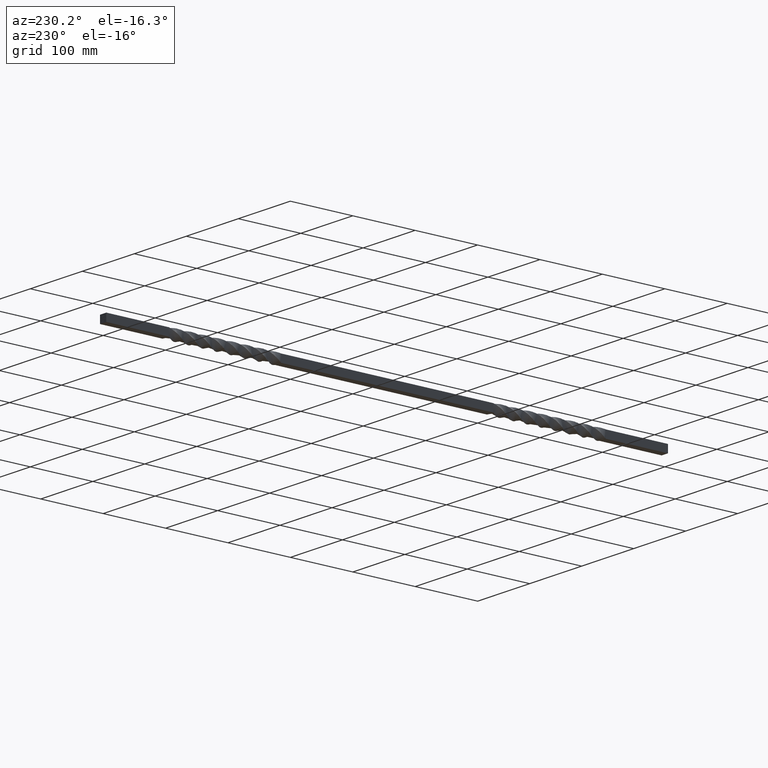
[diagram: clean part render]
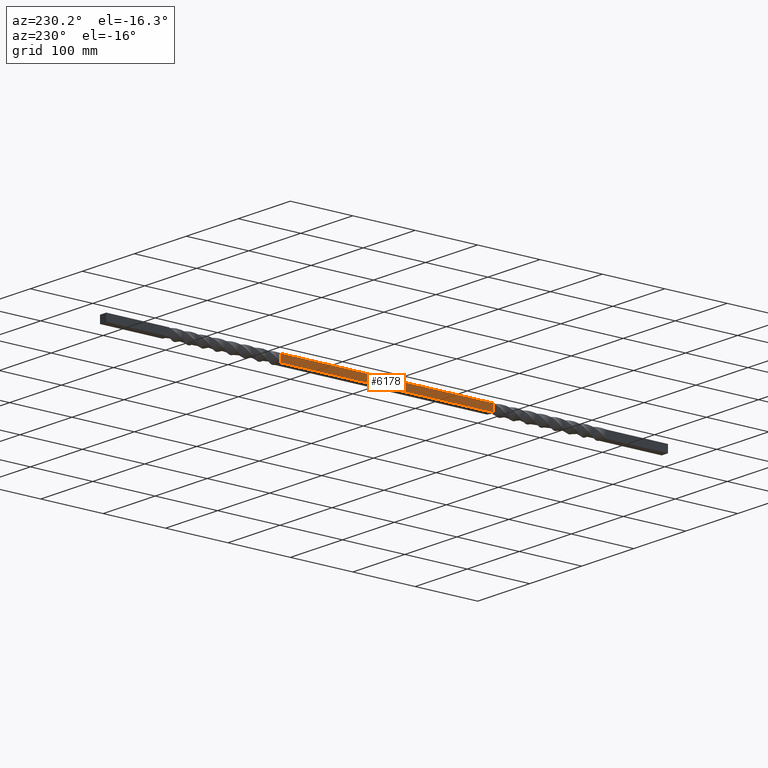
[diagram: same view with one face highlighted and labeled with its STEP entity id]
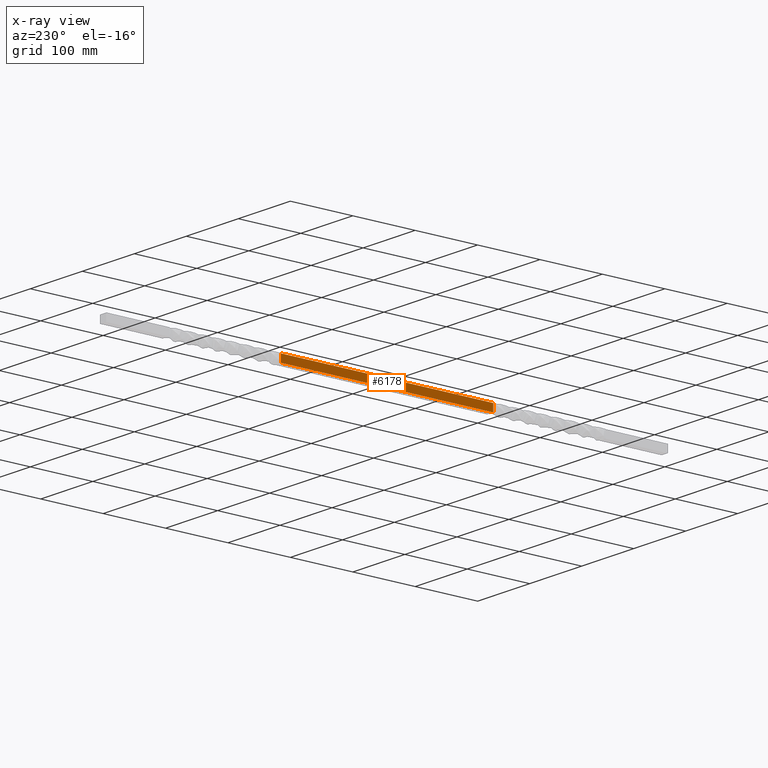
[diagram: x-ray of the same camera — body ghosted, the highlighted face saturated]
A machine part, auxiliary view. The second image highlights one B-rep face of the part: STEP entity #6178.
The next image is the same camera in x-ray: the body ghosted, the highlighted face saturated — about 0% of this face is hidden behind the body in this view.
In plain terms, the highlighted planar face has unit normal (1, -0, 0).
Its self-contained STEP definition (entity closure, byte-faithful):
#276 = VERTEX_POINT ( 'NONE', #9994 ) ;
#349 = DIRECTION ( 'NONE',  ( -0.000000000000000000, -1.000000000000000000, -0.000000000000000000 ) ) ;
#416 = VECTOR ( 'NONE', #9768, 1000.000000000000000 ) ;
#420 = CARTESIAN_POINT ( 'NONE',  ( -5.999999997126952422, 800.0019999863817475, -6.000000006995200863 ) ) ;
#691 = EDGE_CURVE ( 'NONE', #6146, #276, #6541, .T. ) ;
#1175 = VECTOR ( 'NONE', #349, 1000.000000000000000 ) ;
#1527 = DIRECTION ( 'NONE',  ( 1.000000000000000000, -0.000000000000000000, 8.222365204856686049E-10 ) ) ;
#1567 = VERTEX_POINT ( 'NONE', #2331 ) ;
#1802 = VERTEX_POINT ( 'NONE', #10112 ) ;
#2233 = CARTESIAN_POINT ( 'NONE',  ( -5.999999997126952422, 800.0019999863817475, -6.000000006995200863 ) ) ;
#2331 = CARTESIAN_POINT ( 'NONE',  ( -6.000000006993791324, 279.9999999863817948, 5.999999997126825413 ) ) ;
#2363 = CARTESIAN_POINT ( 'NONE',  ( -6.000000006993791324, 800.0019999863817475, 5.999999997126825413 ) ) ;
#3190 = EDGE_LOOP ( 'NONE', ( #5917, #8316, #6943, #6002 ) ) ;
#3974 = EDGE_CURVE ( 'NONE', #276, #1567, #9041, .T. ) ;
#4492 = AXIS2_PLACEMENT_3D ( 'NONE', #2233, #1527, #8163 ) ;
#4809 = LINE ( 'NONE', #9662, #416 ) ;
#4964 = DIRECTION ( 'NONE',  ( -5.459465707728330722E-10, 1.831867991049714330E-11, 1.000000000000000000 ) ) ;
#5917 = ORIENTED_EDGE ( 'NONE', *, *, #691, .F. ) ;
#6002 = ORIENTED_EDGE ( 'NONE', *, *, #3974, .F. ) ;
#6146 = VERTEX_POINT ( 'NONE', #10589 ) ;
#6178 = ADVANCED_FACE ( 'NONE', ( #9668 ), #6370, .F. ) ;
#6370 = PLANE ( 'NONE',  #4492 ) ;
#6541 = LINE ( 'NONE', #10741, #8878 ) ;
#6943 = ORIENTED_EDGE ( 'NONE', *, *, #7224, .T. ) ;
#7224 = EDGE_CURVE ( 'NONE', #1802, #1567, #4809, .T. ) ;
#8163 = DIRECTION ( 'NONE',  ( 8.222365204856686049E-10, 0.000000000000000000, -1.000000000000000000 ) ) ;
#8249 = VECTOR ( 'NONE', #9749, 1000.000000000000000 ) ;
#8316 = ORIENTED_EDGE ( 'NONE', *, *, #9665, .T. ) ;
#8878 = VECTOR ( 'NONE', #4964, 1000.000000000000000 ) ;
#9041 = LINE ( 'NONE', #2363, #8249 ) ;
#9496 = LINE ( 'NONE', #420, #1175 ) ;
#9662 = CARTESIAN_POINT ( 'NONE',  ( -6.000000000000000888, 280.0000000000000000, 0.000000000000000000 ) ) ;
#9665 = EDGE_CURVE ( 'NONE', #6146, #1802, #9496, .T. ) ;
#9668 = FACE_OUTER_BOUND ( 'NONE', #3190, .T. ) ;
#9749 = DIRECTION ( 'NONE',  ( -0.000000000000000000, -1.000000000000000000, -0.000000000000000000 ) ) ;
#9768 = DIRECTION ( 'NONE',  ( 0.000000000000000000, -0.000000000000000000, 1.000000000000000000 ) ) ;
#9994 = CARTESIAN_POINT ( 'NONE',  ( -6.000000006993791324, 619.9999999668445980, 5.999999997126825413 ) ) ;
#10112 = CARTESIAN_POINT ( 'NONE',  ( -5.999999997126952422, 279.9999999863825337, -6.000000006995200863 ) ) ;
#10589 = CARTESIAN_POINT ( 'NONE',  ( -5.999999997126952422, 619.9999999611522981, -6.000000006995200863 ) ) ;
#10741 = CARTESIAN_POINT ( 'NONE',  ( -5.999999998631529330, 619.9999999909529151, -3.276180975814169116E-09 ) ) ;